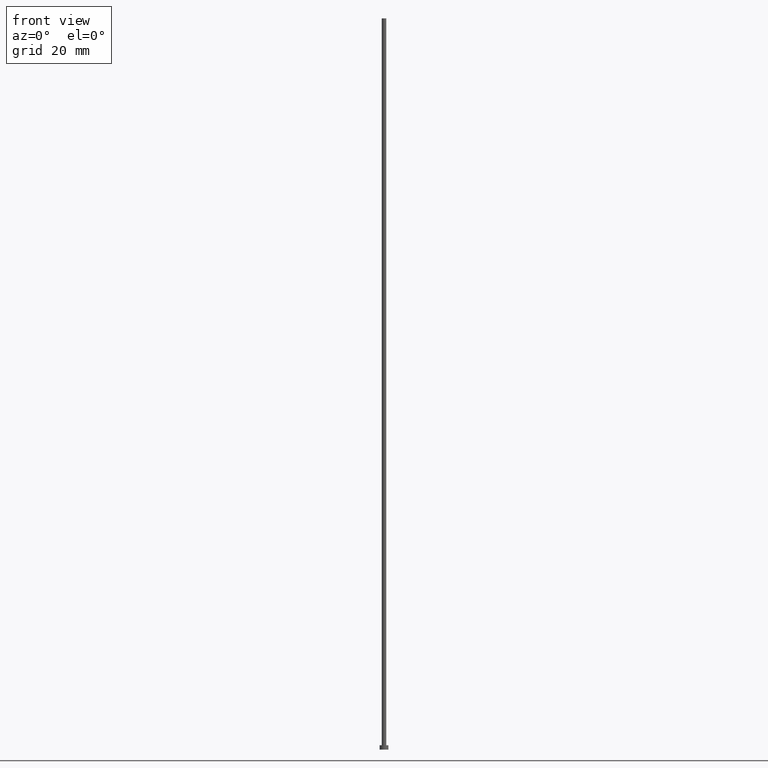
[diagram: clean part render]
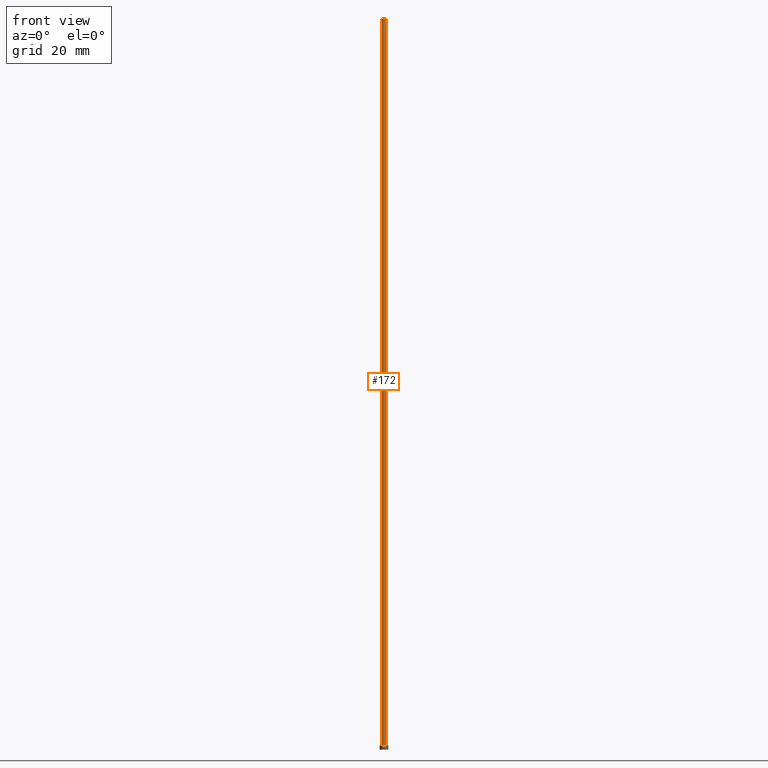
[diagram: same view with one face highlighted and labeled with its STEP entity id]
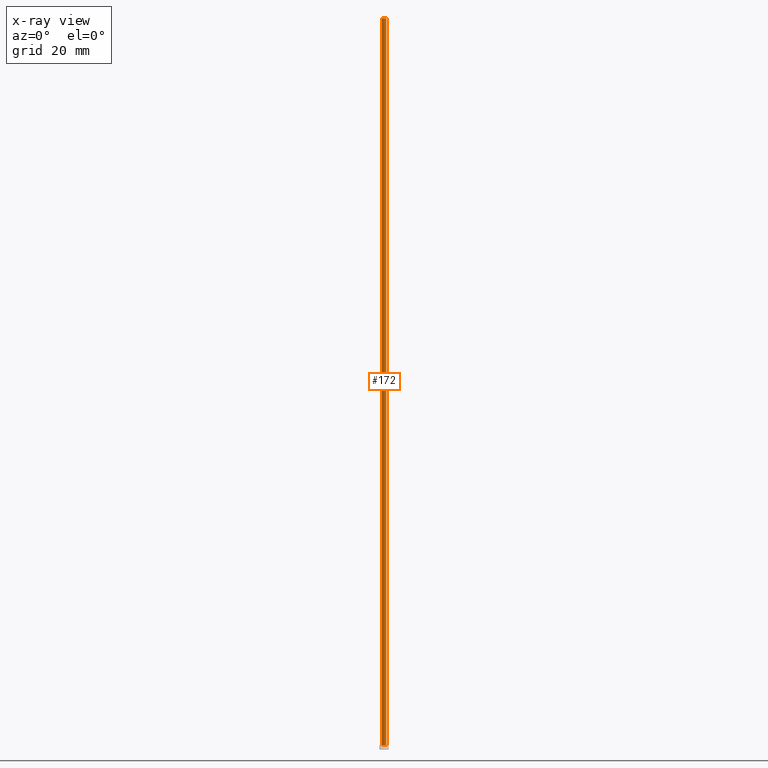
[diagram: x-ray of the same camera — body ghosted, the highlighted face saturated]
A machine part, front view. The second image highlights one B-rep face of the part: STEP entity #172.
The next image is the same camera in x-ray: the body ghosted, the highlighted face saturated — about 0% of this face is hidden behind the body in this view.
In plain terms, the highlighted cylindrical surface (edge-blend (fillet) strip) has radius 0.75 mm, axis along (-0, -0, -1).
Its self-contained STEP definition (entity closure, byte-faithful):
#9 = AXIS2_PLACEMENT_3D ( 'NONE', #31, #10, #113 ) ;
#10 = DIRECTION ( 'NONE',  ( 0.000000000000000000, 0.000000000000000000, 1.000000000000000000 ) ) ;
#16 = AXIS2_PLACEMENT_3D ( 'NONE', #161, #239, #179 ) ;
#17 = CARTESIAN_POINT ( 'NONE',  ( 0.7500000000000001110, 9.184850993605149670E-17, 1.500000000000000000 ) ) ;
#18 = ORIENTED_EDGE ( 'NONE', *, *, #95, .T. ) ;
#20 = CARTESIAN_POINT ( 'NONE',  ( -0.7500000000000001110, 0.000000000000000000, 250.0000000000000000 ) ) ;
#31 = CARTESIAN_POINT ( 'NONE',  ( 0.000000000000000000, 0.000000000000000000, 1.500000000000000000 ) ) ;
#60 = CARTESIAN_POINT ( 'NONE',  ( -0.7500000000000001110, 0.000000000000000000, 1.500000000000000000 ) ) ;
#62 = ORIENTED_EDGE ( 'NONE', *, *, #250, .F. ) ;
#68 = VECTOR ( 'NONE', #112, 1000.000000000000000 ) ;
#69 = VERTEX_POINT ( 'NONE', #209 ) ;
#78 = VERTEX_POINT ( 'NONE', #80 ) ;
#80 = CARTESIAN_POINT ( 'NONE',  ( -0.7500000000000001110, 0.000000000000000000, 250.0000000000000000 ) ) ;
#84 = CIRCLE ( 'NONE', #9, 0.7500000000000001110 ) ;
#89 = AXIS2_PLACEMENT_3D ( 'NONE', #153, #92, #213 ) ;
#92 = DIRECTION ( 'NONE',  ( -0.000000000000000000, -0.000000000000000000, -1.000000000000000000 ) ) ;
#95 = EDGE_CURVE ( 'NONE', #78, #100, #247, .T. ) ;
#100 = VERTEX_POINT ( 'NONE', #60 ) ;
#107 = FACE_OUTER_BOUND ( 'NONE', #157, .T. ) ;
#112 = DIRECTION ( 'NONE',  ( -0.000000000000000000, -0.000000000000000000, -1.000000000000000000 ) ) ;
#113 = DIRECTION ( 'NONE',  ( 1.000000000000000000, 0.000000000000000000, 0.000000000000000000 ) ) ;
#114 = CIRCLE ( 'NONE', #16, 0.7500000000000001110 ) ;
#123 = EDGE_CURVE ( 'NONE', #78, #69, #114, .T. ) ;
#129 = VECTOR ( 'NONE', #150, 1000.000000000000000 ) ;
#136 = LINE ( 'NONE', #215, #68 ) ;
#137 = CYLINDRICAL_SURFACE ( 'NONE', #89, 0.7500000000000001110 ) ;
#150 = DIRECTION ( 'NONE',  ( -0.000000000000000000, -0.000000000000000000, -1.000000000000000000 ) ) ;
#153 = CARTESIAN_POINT ( 'NONE',  ( 0.000000000000000000, 0.000000000000000000, 250.0000000000000000 ) ) ;
#157 = EDGE_LOOP ( 'NONE', ( #62, #204, #18, #167 ) ) ;
#161 = CARTESIAN_POINT ( 'NONE',  ( 0.000000000000000000, 0.000000000000000000, 250.0000000000000000 ) ) ;
#163 = EDGE_CURVE ( 'NONE', #100, #168, #84, .T. ) ;
#167 = ORIENTED_EDGE ( 'NONE', *, *, #163, .T. ) ;
#168 = VERTEX_POINT ( 'NONE', #17 ) ;
#172 = ADVANCED_FACE ( 'NONE', ( #107 ), #137, .T. ) ;
#179 = DIRECTION ( 'NONE',  ( 1.000000000000000000, 0.000000000000000000, 0.000000000000000000 ) ) ;
#204 = ORIENTED_EDGE ( 'NONE', *, *, #123, .F. ) ;
#209 = CARTESIAN_POINT ( 'NONE',  ( 0.7500000000000001110, 9.184850993605149670E-17, 250.0000000000000000 ) ) ;
#213 = DIRECTION ( 'NONE',  ( -1.000000000000000000, 0.000000000000000000, 0.000000000000000000 ) ) ;
#215 = CARTESIAN_POINT ( 'NONE',  ( 0.7500000000000001110, 9.184850993605149670E-17, 250.0000000000000000 ) ) ;
#239 = DIRECTION ( 'NONE',  ( 0.000000000000000000, 0.000000000000000000, 1.000000000000000000 ) ) ;
#247 = LINE ( 'NONE', #20, #129 ) ;
#250 = EDGE_CURVE ( 'NONE', #69, #168, #136, .T. ) ;